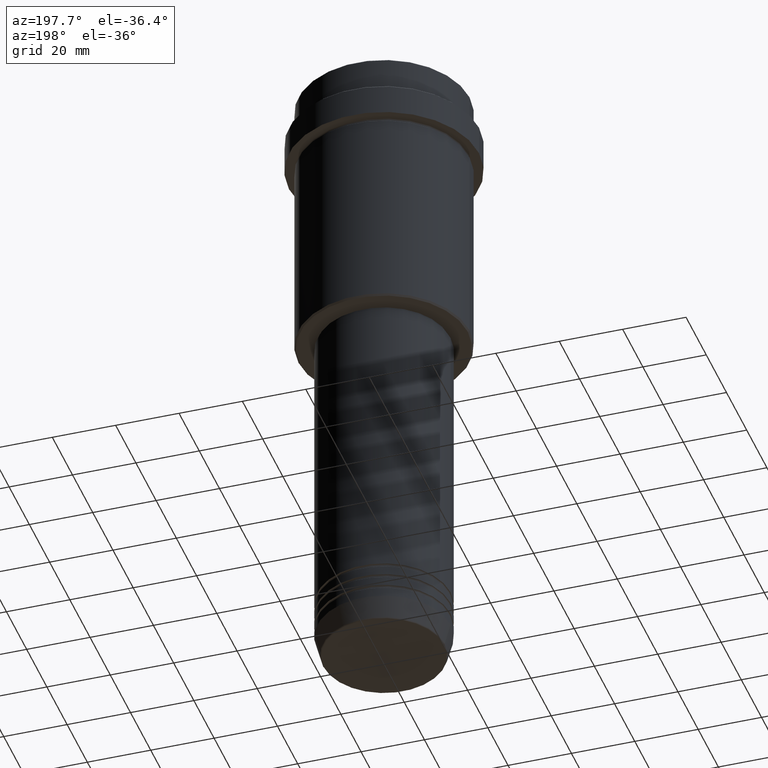
[diagram: clean part render]
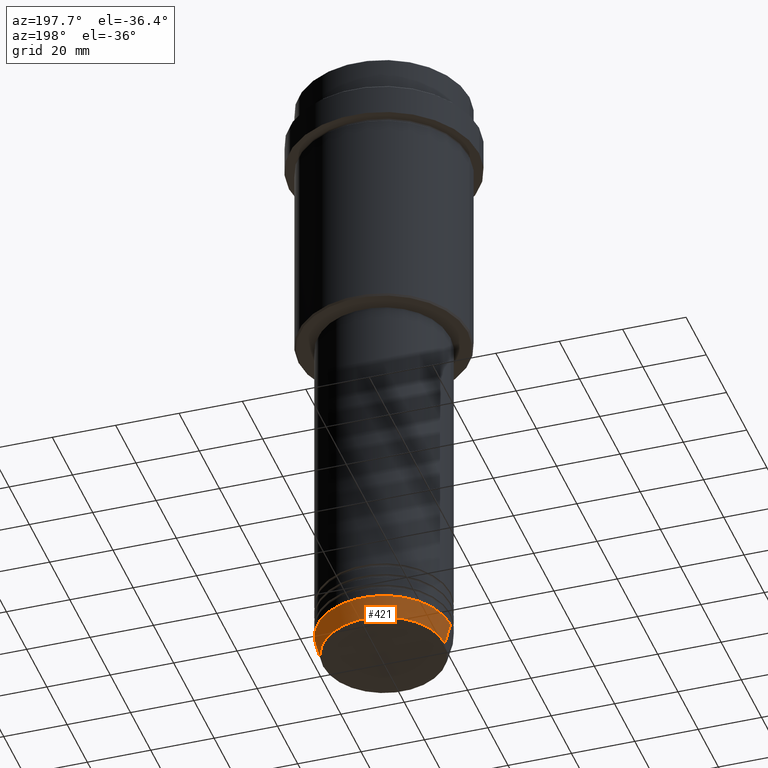
[diagram: same view with one face highlighted and labeled with its STEP entity id]
A machine part, auxiliary view. The second image highlights one B-rep face of the part: STEP entity #421.
In plain terms, the highlighted conical surface has half-angle 15 deg.
Its self-contained STEP definition (entity closure, byte-faithful):
#2 = ORIENTED_EDGE ( 'NONE', *, *, #1309, .T. ) ;
#56 = CIRCLE ( 'NONE', #520, 21.00000000000000000 ) ;
#93 = ORIENTED_EDGE ( 'NONE', *, *, #346, .F. ) ;
#186 = DIRECTION ( 'NONE',  ( 0.2588190451025209060, 0.000000000000000000, 0.9659258262890682012 ) ) ;
#237 = ORIENTED_EDGE ( 'NONE', *, *, #957, .T. ) ;
#247 = EDGE_LOOP ( 'NONE', ( #2, #237, #455, #93 ) ) ;
#346 = EDGE_CURVE ( 'NONE', #1386, #1373, #526, .T. ) ;
#369 = DIRECTION ( 'NONE',  ( 1.000000000000000000, 0.000000000000000000, 0.000000000000000000 ) ) ;
#403 = CARTESIAN_POINT ( 'NONE',  ( 0.000000000000000000, 0.000000000000000000, -196.0000000000000000 ) ) ;
#421 = ADVANCED_FACE ( 'NONE', ( #1289 ), #883, .T. ) ;
#437 = CARTESIAN_POINT ( 'NONE',  ( -21.00000000000000000, 2.571758278209441661E-15, -196.0000000000000000 ) ) ;
#455 = ORIENTED_EDGE ( 'NONE', *, *, #1129, .F. ) ;
#475 = DIRECTION ( 'NONE',  ( -0.000000000000000000, -0.000000000000000000, 1.000000000000000000 ) ) ;
#520 = AXIS2_PLACEMENT_3D ( 'NONE', #915, #1019, #369 ) ;
#526 = LINE ( 'NONE', #1170, #811 ) ;
#610 = AXIS2_PLACEMENT_3D ( 'NONE', #403, #475, #1345 ) ;
#642 = DIRECTION ( 'NONE',  ( -0.2588190451025209060, 3.169619151431766790E-17, 0.9659258262890682012 ) ) ;
#646 = DIRECTION ( 'NONE',  ( -0.000000000000000000, -0.000000000000000000, 1.000000000000000000 ) ) ;
#652 = CARTESIAN_POINT ( 'NONE',  ( 19.22365507213718416, 0.000000000000000000, -202.6294095225512706 ) ) ;
#683 = AXIS2_PLACEMENT_3D ( 'NONE', #760, #646, #1277 ) ;
#751 = CARTESIAN_POINT ( 'NONE',  ( 21.00000000000000000, 0.000000000000000000, -196.0000000000000000 ) ) ;
#760 = CARTESIAN_POINT ( 'NONE',  ( 0.000000000000000000, 0.000000000000000000, -202.6294095225512706 ) ) ;
#811 = VECTOR ( 'NONE', #186, 1000.000000000000000 ) ;
#838 = VECTOR ( 'NONE', #642, 1000.000000000000000 ) ;
#883 = CONICAL_SURFACE ( 'NONE', #610, 21.00000000000000000, 0.2617993877991495744 ) ;
#915 = CARTESIAN_POINT ( 'NONE',  ( 0.000000000000000000, 0.000000000000000000, -196.0000000000000000 ) ) ;
#956 = LINE ( 'NONE', #437, #838 ) ;
#957 = EDGE_CURVE ( 'NONE', #970, #980, #956, .T. ) ;
#970 = VERTEX_POINT ( 'NONE', #1081 ) ;
#980 = VERTEX_POINT ( 'NONE', #1193 ) ;
#1019 = DIRECTION ( 'NONE',  ( -0.000000000000000000, -0.000000000000000000, 1.000000000000000000 ) ) ;
#1038 = CIRCLE ( 'NONE', #683, 19.22365507213718416 ) ;
#1081 = CARTESIAN_POINT ( 'NONE',  ( -19.22365507213718416, 2.462988521705000261E-15, -202.6294095225512706 ) ) ;
#1129 = EDGE_CURVE ( 'NONE', #1373, #980, #56, .T. ) ;
#1170 = CARTESIAN_POINT ( 'NONE',  ( 21.00000000000000000, 0.000000000000000000, -196.0000000000000000 ) ) ;
#1193 = CARTESIAN_POINT ( 'NONE',  ( -21.00000000000000000, 2.571758278209441661E-15, -196.0000000000000000 ) ) ;
#1277 = DIRECTION ( 'NONE',  ( 1.000000000000000000, 0.000000000000000000, 0.000000000000000000 ) ) ;
#1289 = FACE_OUTER_BOUND ( 'NONE', #247, .T. ) ;
#1309 = EDGE_CURVE ( 'NONE', #1386, #970, #1038, .T. ) ;
#1345 = DIRECTION ( 'NONE',  ( 1.000000000000000000, 0.000000000000000000, 0.000000000000000000 ) ) ;
#1373 = VERTEX_POINT ( 'NONE', #751 ) ;
#1386 = VERTEX_POINT ( 'NONE', #652 ) ;